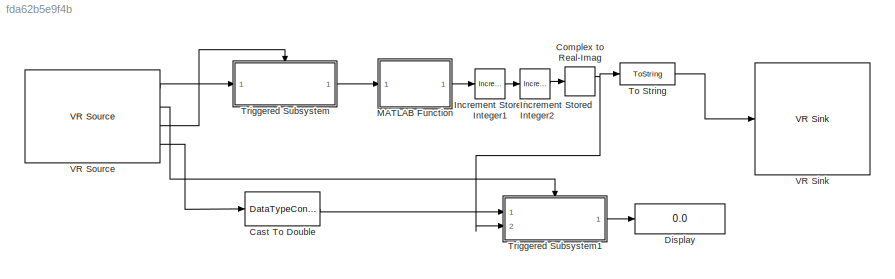
MODEL slx_fda62b5e9f4b
KIND model
CONFIG AbsTol = auto
CONFIG EnableMultiTasking = off
CONFIG FixedStep = auto
CONFIG MaxStep = auto
CONFIG MinStep = auto
CONFIG RelTol = 1e-3
CONFIG SampleTimeConstraint = Unconstrained
CONFIG Solver = VariableStepAuto
CONFIG SolverName = VariableStepAuto
CONFIG StartTime = 0.0
CONFIG StopTime = 100000
WORKSPACE source: mxarray member
WORKSPACE stepval = 1
BLOCK [DataTypeConversion] Cast To Double
  OutDataTypeStr = double
  RndMeth = Floor
  SaturateOnIntegerOverflow = off
BLOCK [ComplexToRealImag] Complex to Real-Imag
  Ports = [1, 2]
BLOCK [Display] Display
  Decimation = 1
  Ports = [1]
BLOCK [Reference] Increment Stored Integer1  REF=simulink/Additional Math
& Discrete/Additional Math:
Increment - Decrement/Increment
Stored Integer
  Ports = [1, 1]
  SourceBlock = simulink/Additional Math\n& Discrete/Additional Math:\nIncrement - Decrement/Increment\nStored Integer
  SourceProductBaseCode = SL
  SourceType = Stored Integer Value Increment
BLOCK [Reference] Increment Stored Integer2  REF=simulink/Additional Math
& Discrete/Additional Math:
Increment - Decrement/Increment
Stored Integer
  Ports = [1, 1]
  SourceBlock = simulink/Additional Math\n& Discrete/Additional Math:\nIncrement - Decrement/Increment\nStored Integer
  SourceProductBaseCode = SL
  SourceType = Stored Integer Value Increment
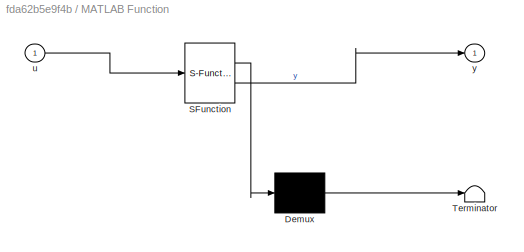
BLOCK [SubSystem] MATLAB Function
  ErrorFcn = Stateflow.Translate.translate
  PermitHierarchicalResolution = ExplicitOnly
  Ports = [1, 1]
  RequestExecContextInheritance = off
  SFBlockType = MATLAB Function
  TreatAsAtomicUnit = on
BLOCK [Demux] MATLAB Function/ Demux 
  Outputs = 1
  Ports = [1, 1]
BLOCK [S-Function] MATLAB Function/ SFunction 
  EnableBusSupport = on
  FunctionName = sf_sfun
  PortCounts = [1 2]
  Ports = [1, 2]
  SFcnIsStateOwnerBlock = off
  SFunctionDeploymentMode = off
  Tag = Stateflow S-Function 1
BLOCK [Terminator] MATLAB Function/ Terminator 
BLOCK [Inport] MATLAB Function/u
BLOCK [Outport] MATLAB Function/y
BLOCK [ToString] To String
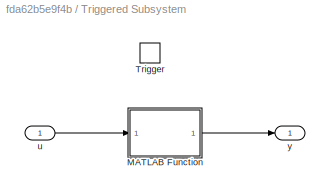
BLOCK [SubSystem] Triggered Subsystem
  Ports = [1, 1, 0, 1]
  RequestExecContextInheritance = off
  TreatAsAtomicUnit = on
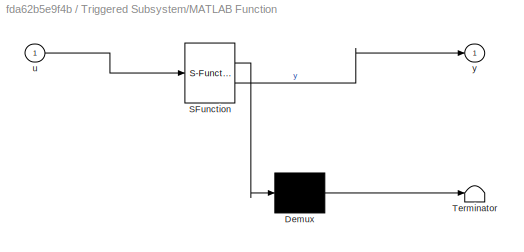
BLOCK [SubSystem] Triggered Subsystem/MATLAB Function
  ErrorFcn = Stateflow.Translate.translate
  PermitHierarchicalResolution = ExplicitOnly
  Ports = [1, 1]
  RequestExecContextInheritance = off
  SFBlockType = MATLAB Function
  TreatAsAtomicUnit = on
BLOCK [Demux] Triggered Subsystem/MATLAB Function/ Demux 
  Outputs = 1
  Ports = [1, 1]
BLOCK [S-Function] Triggered Subsystem/MATLAB Function/ SFunction 
  EnableBusSupport = on
  FunctionName = sf_sfun
  PortCounts = [1 2]
  Ports = [1, 2]
  SFcnIsStateOwnerBlock = off
  SFunctionDeploymentMode = off
  Tag = Stateflow S-Function 2
BLOCK [Terminator] Triggered Subsystem/MATLAB Function/ Terminator 
BLOCK [Inport] Triggered Subsystem/MATLAB Function/u
BLOCK [Outport] Triggered Subsystem/MATLAB Function/y
BLOCK [TriggerPort] Triggered Subsystem/Trigger
  Ports = []
  StatesWhenEnabling = held
  VariantControl = Variant
BLOCK [Inport] Triggered Subsystem/u
BLOCK [Outport] Triggered Subsystem/y
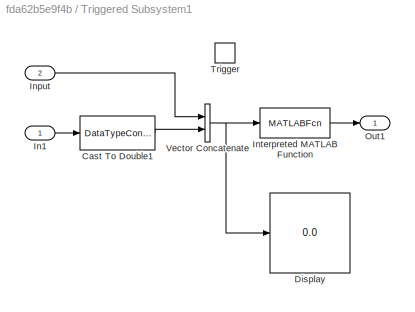
BLOCK [SubSystem] Triggered Subsystem1
  Ports = [2, 1, 0, 1]
  RequestExecContextInheritance = off
  TreatAsAtomicUnit = on
BLOCK [DataTypeConversion] Triggered Subsystem1/Cast To Double1
  OutDataTypeStr = double
  RndMeth = Floor
  SaturateOnIntegerOverflow = off
BLOCK [Display] Triggered Subsystem1/Display
  Decimation = 1
  Ports = [1]
BLOCK [Inport] Triggered Subsystem1/In1
BLOCK [Inport] Triggered Subsystem1/Input
  Port = 2
BLOCK [MATLABFcn] Triggered Subsystem1/Interpreted MATLAB Function
  MATLABFcn = simulateWorld
  Ports = [1, 1]
BLOCK [Outport] Triggered Subsystem1/Out1
BLOCK [TriggerPort] Triggered Subsystem1/Trigger
  Ports = []
  StatesWhenEnabling = held
  VariantControl = Variant
BLOCK [Concatenate] Triggered Subsystem1/Vector Concatenate
  Ports = [2, 1]
BLOCK [Reference] VR Sink  REF=vrlib/VR Sink
  InstantiateOnLoad = on
  Ports = [1]
  SourceBlock = vrlib/VR Sink
  SourceProductBaseCode = SL
  SourceType = Virtual Reality Sink
BLOCK [Reference] VR Source  REF=vrlib/VR Source
  InstantiateOnLoad = on
  NameLocation = top
  Ports = [0, 4]
  SourceBlock = vrlib/VR Source
  SourceProductBaseCode = SL
  SourceType = Virtual Reality Source
LINE Cast To Double:1 -> Triggered Subsystem1:1
NET Complex to Real-Imag:1 -> To String:1, Triggered Subsystem1:2
LINE Increment Stored Integer1:1 -> Increment Stored Integer2:1
LINE Increment Stored Integer2:1 -> Complex to Real-Imag:1
LINE MATLAB Function:1 -> Increment Stored Integer1:1
LINE To String:1 -> VR Sink:1
LINE Triggered Subsystem/MATLAB Function:1 -> Triggered Subsystem/y:1
LINE Triggered Subsystem/u:1 -> Triggered Subsystem/MATLAB Function:1
LINE Triggered Subsystem1/Cast To Double1:1 -> Triggered Subsystem1/Vector Concatenate:2
LINE Triggered Subsystem1/In1:1 -> Triggered Subsystem1/Cast To Double1:1
LINE Triggered Subsystem1/Input:1 -> Triggered Subsystem1/Vector Concatenate:1
LINE Triggered Subsystem1/Interpreted MATLAB Function:1 -> Triggered Subsystem1/Out1:1
NET Triggered Subsystem1/Vector Concatenate:1 -> Triggered Subsystem1/Display:1, Triggered Subsystem1/Interpreted MATLAB Function:1
LINE Triggered Subsystem1:1 -> Display:1
LINE Triggered Subsystem:1 -> MATLAB Function:1
LINE VR Source:1 -> Triggered Subsystem:1
LINE VR Source:2 -> Triggered Subsystem1:trigger
LINE VR Source:3 -> Triggered Subsystem:trigger
LINE VR Source:4 -> Cast To Double:1
note: NET lines group one-source signal fan-out (src -> all destinations, sorted); 1:1 wires keep LINE
CHART Triggered
Subsystem/MATLAB Function states=1 transitions=1
  STATE_LABEL 'eML_blk_kernel()'
  STATE_LABEL 'SCRIPT:\nfunction y = fcn(u)\n\ny = str2double(u);\n'
CHART MATLAB Function states=1 transitions=1
  STATE_LABEL 'eML_blk_kernel()'
  STATE_LABEL 'SCRIPT:\nfunction y = fcn(u)\nif(u==5||u==0)\n    u=-1;\nend\ny = u;\n'
CHART  states=0 transitions=0
CHART  states=0 transitions=0
